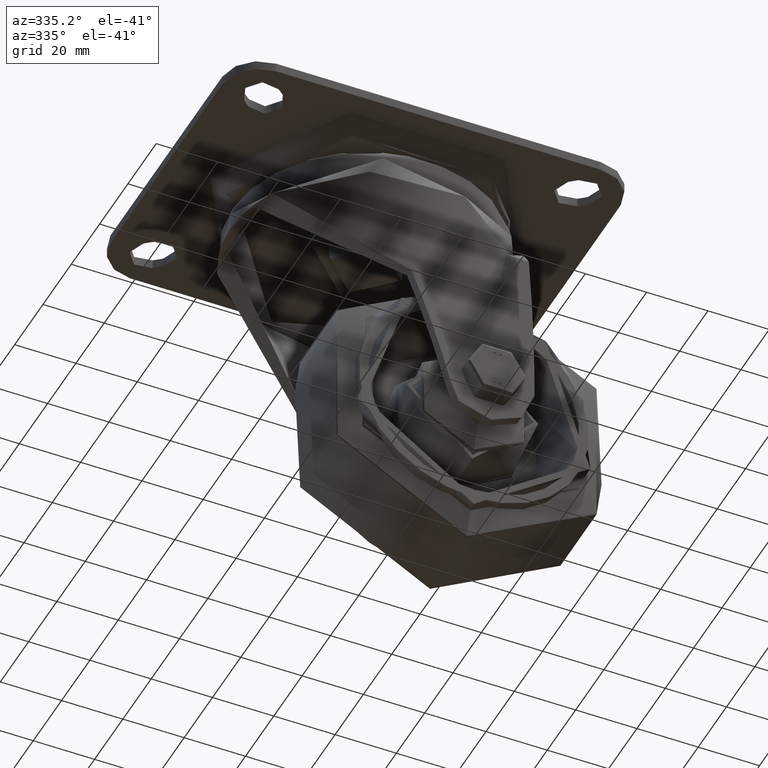
[diagram: clean part render]
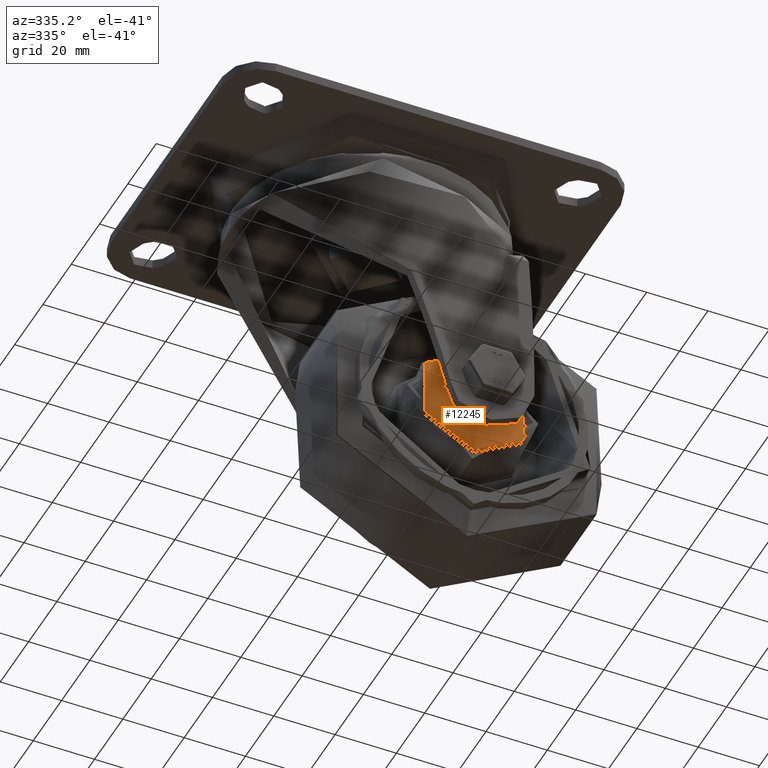
[diagram: same view with one face highlighted and labeled with its STEP entity id]
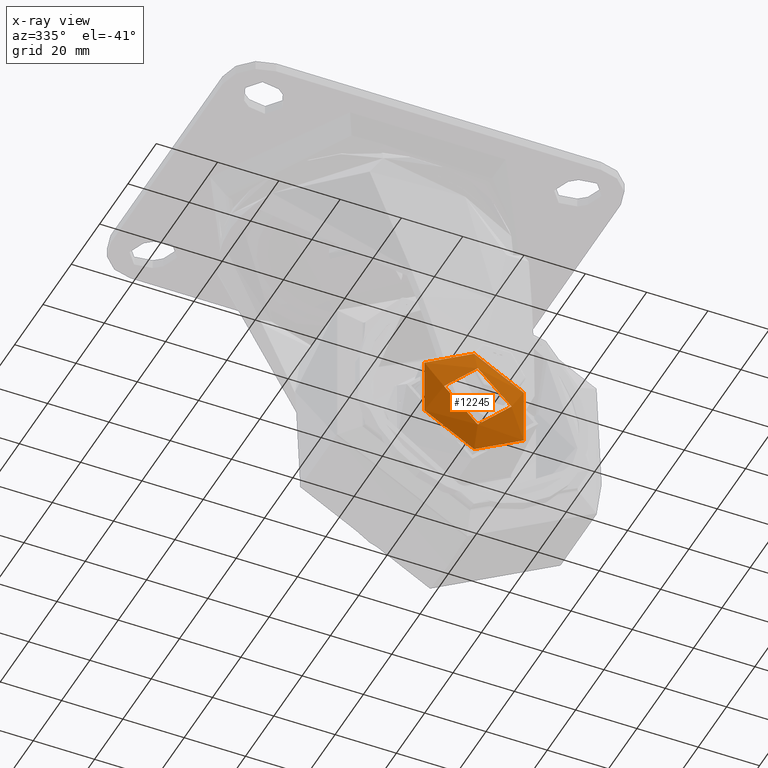
[diagram: x-ray of the same camera — body ghosted, the highlighted face saturated]
A machine part, auxiliary view. The second image highlights one B-rep face of the part: STEP entity #12245.
The next image is the same camera in x-ray: the body ghosted, the highlighted face saturated — about 2% of this face is hidden behind the body in this view.
In plain terms, the highlighted conical surface has half-angle 71.565 deg.
Its self-contained STEP definition (entity closure, byte-faithful):
#374=CONICAL_SURFACE('',#13404,15.125,1.24904577239825);
#1896=LINE('',#22632,#2633);
#2633=VECTOR('',#15667,15.125);
#3605=FACE_OUTER_BOUND('',#4469,.T.);
#4469=EDGE_LOOP('',(#10455,#10456,#10457,#10458,#10459));
#5099=CIRCLE('',#13393,11.);
#5107=CIRCLE('',#13405,18.7371708245126);
#5108=CIRCLE('',#13406,18.7371708245126);
#5975=VERTEX_POINT('',#22605);
#5983=VERTEX_POINT('',#22629);
#5984=VERTEX_POINT('',#22630);
#7522=EDGE_CURVE('',#5975,#5975,#5099,.T.);
#7534=EDGE_CURVE('',#5983,#5984,#5107,.T.);
#7535=EDGE_CURVE('',#5983,#5975,#1896,.T.);
#7536=EDGE_CURVE('',#5984,#5983,#5108,.T.);
#10455=ORIENTED_EDGE('',*,*,#7534,.F.);
#10456=ORIENTED_EDGE('',*,*,#7535,.T.);
#10457=ORIENTED_EDGE('',*,*,#7522,.T.);
#10458=ORIENTED_EDGE('',*,*,#7535,.F.);
#10459=ORIENTED_EDGE('',*,*,#7536,.F.);
#12245=ADVANCED_FACE('',(#3605),#374,.T.);
#13393=AXIS2_PLACEMENT_3D('',#22606,#15637,#15638);
#13404=AXIS2_PLACEMENT_3D('',#22628,#15663,#15664);
#13405=AXIS2_PLACEMENT_3D('',#22631,#15665,#15666);
#13406=AXIS2_PLACEMENT_3D('',#22633,#15668,#15669);
#15637=DIRECTION('center_axis',(0.,1.,0.));
#15638=DIRECTION('ref_axis',(0.,0.,1.));
#15663=DIRECTION('center_axis',(0.,1.,0.));
#15664=DIRECTION('ref_axis',(0.,0.,1.));
#15665=DIRECTION('center_axis',(0.,1.,0.));
#15666=DIRECTION('ref_axis',(1.22464679914735E-16,0.,-1.));
#15667=DIRECTION('',(1.16180196436211E-16,-0.316227766016842,0.948683298050512));
#15668=DIRECTION('center_axis',(0.,1.,0.));
#15669=DIRECTION('ref_axis',(1.22464679914735E-16,0.,-1.));
#22605=CARTESIAN_POINT('',(1.34711147906209E-15,-8.25,-11.));
#22606=CARTESIAN_POINT('Origin',(0.,-8.25,0.));
#22628=CARTESIAN_POINT('Origin',(0.,-6.875,0.));
#22629=CARTESIAN_POINT('',(4.58928325506331E-15,-5.67094305849578,-18.7371708245126));
#22630=CARTESIAN_POINT('',(6.00478999977421E-30,-5.67094305849578,18.7371708245126));
#22631=CARTESIAN_POINT('Origin',(0.,-5.67094305849578,0.));
#22632=CARTESIAN_POINT('',(-1.85227828371037E-15,-6.875,-15.125));
#22633=CARTESIAN_POINT('Origin',(0.,-5.67094305849578,0.));